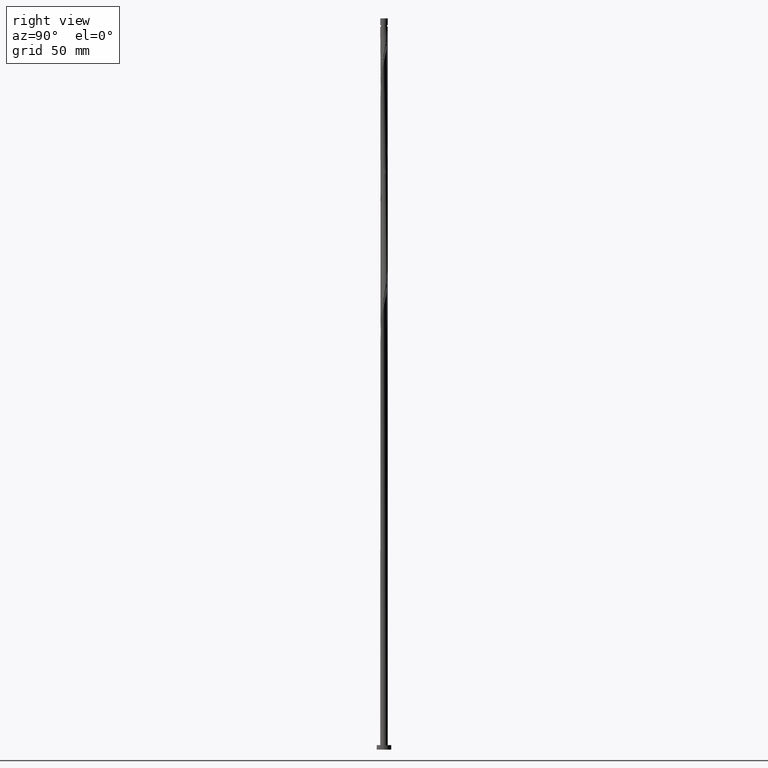
[diagram: clean part render]
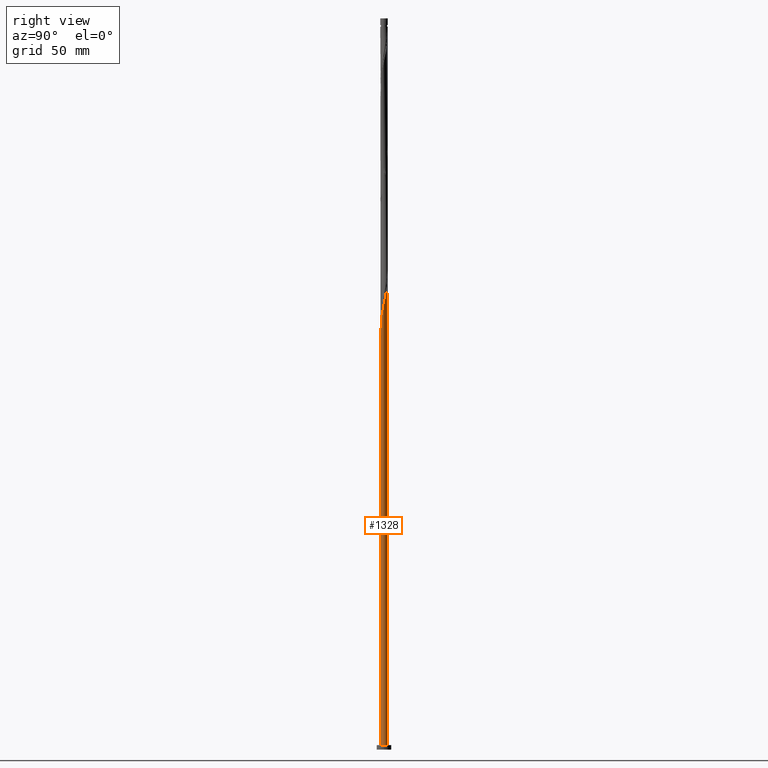
[diagram: same view with one face highlighted and labeled with its STEP entity id]
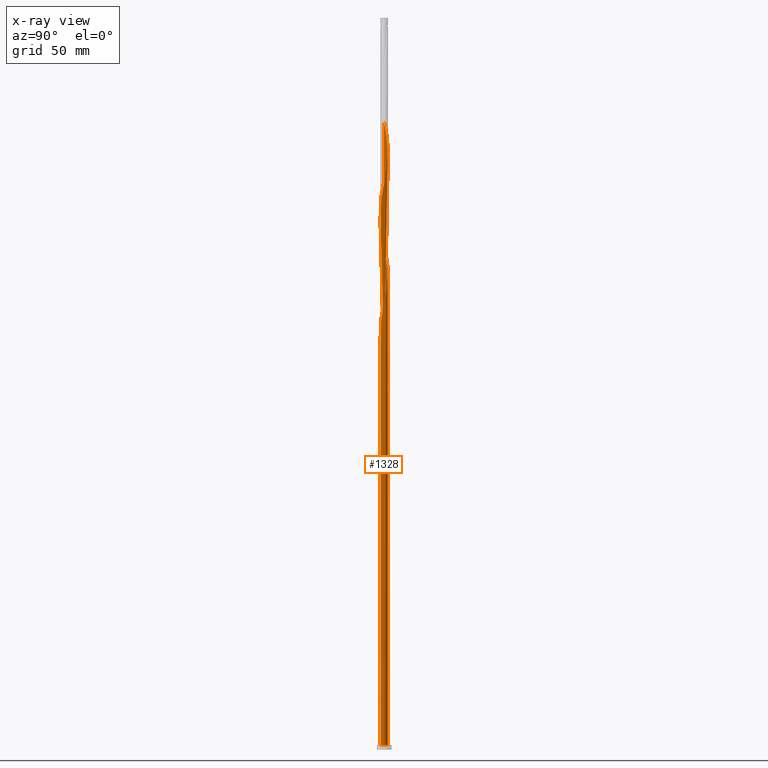
[diagram: x-ray of the same camera — body ghosted, the highlighted face saturated]
A machine part, right view. The second image highlights one B-rep face of the part: STEP entity #1328.
The next image is the same camera in x-ray: the body ghosted, the highlighted face saturated — about 0% of this face is hidden behind the body in this view.
In plain terms, the highlighted cylindrical surface (bore or boss wall) has radius 2.6 mm, axis along (-0, -0, -1).
Its self-contained STEP definition (entity closure, byte-faithful):
#1 = CARTESIAN_POINT ( 'NONE',  ( -2.308979945637289699, 1.222369572929240977, 256.1036788288062667 ) ) ;
#13 = CARTESIAN_POINT ( 'NONE',  ( -2.299163681329198461, 1.240734511745017254, 261.3120121621395242 ) ) ;
#28 = CARTESIAN_POINT ( 'NONE',  ( -0.7484224432186206144, 2.503086017032784660, 250.8953454954728670 ) ) ;
#40 = CARTESIAN_POINT ( 'NONE',  ( 2.503086017032788657, -0.7484224432186226128, 300.3745121621395242 ) ) ;
#49 = EDGE_CURVE ( 'NONE', #1168, #1640, #1856, .T. ) ;
#52 =( BOUNDED_CURVE ( )  B_SPLINE_CURVE ( 2, ( #904, #1687, #460, #1678, #314, #1520, #1369, #1213, #1837, #1062, #326, #919, #1530, #1376, #481, #1070, #334, #690, #523, #1725, #365, #1865, #1715, #88, #502, #837, #1577, #205, #68, #1286, #1735, #40, #1910, #514, #1396, #1245, #1755, #683, #1090, #978, #217, #1565, #1435, #226, #1257, #808, #542, #652, #957, #677, #968, #818, #356, #947, #1877, #55, #1747, #1406, #533, #665, #1120, #384, #1101, #1128, #937, #1417, #1887, #1270, #1552, #1109, #195, #375, #1589, #828, #1425, #78, #797, #1280, #1896, #1601, #237, #1294, #870, #121, #1480, #726, #1302, #1445, #1929, #255, #1920, #856, #108, #132, #561, #736, #1490, #1339, #1311, #405, #573, #1641, #1180, #1956, #284, #993, #1650, #1946, #1156, #552, #847, #1771, #880, #706, #1456, #1323, #1621, #1148, #415, #592, #99, #1001, #700, #1137, #1611, #1629, #1764, #264, #396, #273, #863 ),
 .UNSPECIFIED., .F., .T. ) 
 B_SPLINE_CURVE_WITH_KNOTS ( ( 3, 2, 2, 2, 2, 2, 2, 2, 2, 2, 2, 2, 2, 2, 2, 2, 2, 2, 2, 2, 2, 2, 2, 2, 2, 2, 2, 2, 2, 2, 2, 2, 2, 2, 2, 2, 2, 2, 2, 2, 2, 2, 2, 2, 2, 2, 2, 2, 2, 2, 2, 2, 2, 2, 2, 2, 2, 2, 2, 2, 2, 2, 2, 2, 2, 3 ),
 ( 0.05452869021808706695, 0.05468750000000000000, 0.06250000000000000000, 0.07031250000000000000, 0.07812500000000000000, 0.08593750000000000000, 0.09375000000000000000, 0.1015625000000000000, 0.1093750000000000000, 0.1171875000000000000, 0.1250000000000000000, 0.1328125000000000000, 0.1406250000000000000, 0.1484375000000000000, 0.1562500000000000000, 0.1640625000000000000, 0.1718750000000000000, 0.1796875000000000000, 0.1875000000000000000, 0.1953125000000000000, 0.2031250000000000000, 0.2109375000000000000, 0.2187500000000000000, 0.2265625000000000000, 0.2343750000000000000, 0.2421875000000000000, 0.2500000000000000000, 0.2578125000000000000, 0.2656250000000000000, 0.2734375000000000000, 0.2812500000000000000, 0.2890625000000000000, 0.2968750000000000000, 0.3046875000000000000, 0.3125000000000000000, 0.3203125000000000000, 0.3281250000000000000, 0.3359375000000000000, 0.3437500000000000000, 0.3515625000000000000, 0.3593750000000000000, 0.3671875000000000000, 0.3750000000000000000, 0.3828125000000000000, 0.3906250000000000000, 0.3984375000000000000, 0.4062500000000000000, 0.4140625000000000000, 0.4218750000000000000, 0.4296875000000000000, 0.4375000000000000000, 0.4453125000000000000, 0.4531250000000000000, 0.4609375000000000000, 0.4687500000000000000, 0.4765625000000000000, 0.4843750000000000000, 0.4921875000000000000, 0.5000000000000000000, 0.5078125000000000000, 0.5156250000000000000, 0.5234375000000000000, 0.5312500000000000000, 0.5390625000000000000, 0.5468750000000000000, 0.5545286902180871502 ),
 .UNSPECIFIED. ) 
 CURVE ( )  GEOMETRIC_REPRESENTATION_ITEM ( )  RATIONAL_B_SPLINE_CURVE ( ( 0.9089165573359931916, 0.9090019243628980616, 0.9090909090909899959, 0.9047133878838958809, 0.9090909090909899959, 0.9047133878838958809, 0.9090909090909899959, 0.9047133878838958809, 0.9090909090909899959, 0.9047133878838958809, 0.9090909090909899959, 0.9047133878838958809, 0.9090909090909899959, 0.9047133878838958809, 0.9090909090909899959, 0.9047133878838958809, 0.9090909090909899959, 0.9047133878838958809, 0.9090909090909899959, 0.9047133878838958809, 0.9090909090909899959, 0.9047133878838958809, 0.9090909090909899959, 0.9047133878838958809, 0.9090909090909899959, 0.9047133878838958809, 0.9090909090909899959, 0.9047133878838958809, 0.9090909090909899959, 0.9047133878838958809, 0.9090909090909899959, 0.9047133878838958809, 0.9090909090909899959, 0.9047133878838958809, 0.9090909090909899959, 0.9047133878838958809, 0.9090909090909899959, 0.9047133878838958809, 0.9090909090909899959, 0.9047133878838958809, 0.9090909090909899959, 0.9047133878838958809, 0.9090909090909899959, 0.9047133878838958809, 0.9090909090909899959, 0.9047133878838958809, 0.9090909090909899959, 0.9047133878838958809, 0.9090909090909899959, 0.9047133878838958809, 0.9090909090909899959, 0.9047133878838958809, 0.9090909090909899959, 0.9047133878838958809, 0.9090909090909899959, 0.9047133878838958809, 0.9090909090909899959, 0.9047133878838958809, 0.9090909090909899959, 0.9047133878838958809, 0.9090909090909899959, 0.9047133878838958809, 0.9090909090909899959, 0.9047133878838958809, 0.9090909090909899959, 0.9047133878838958809, 0.9090909090909899959, 0.9047133878838958809, 0.9090909090909899959, 0.9047133878838958809, 0.9090909090909899959, 0.9047133878838958809, 0.9090909090909899959, 0.9047133878838958809, 0.9090909090909899959, 0.9047133878838958809, 0.9090909090909899959, 0.9047133878838958809, 0.9090909090909899959, 0.9047133878838958809, 0.9090909090909899959, 0.9047133878838958809, 0.9090909090909899959, 0.9047133878838958809, 0.9090909090909899959, 0.9047133878838958809, 0.9090909090909899959, 0.9047133878838958809, 0.9090909090909899959, 0.9047133878838958809, 0.9090909090909899959, 0.9047133878838958809, 0.9090909090909899959, 0.9047133878838958809, 0.9090909090909899959, 0.9047133878838958809, 0.9090909090909899959, 0.9047133878838958809, 0.9090909090909899959, 0.9047133878838958809, 0.9090909090909899959, 0.9047133878838958809, 0.9090909090909899959, 0.9047133878838958809, 0.9090909090909899959, 0.9047133878838958809, 0.9090909090909899959, 0.9047133878838958809, 0.9090909090909899959, 0.9047133878838958809, 0.9090909090909899959, 0.9047133878838958809, 0.9090909090909899959, 0.9047133878838958809, 0.9090909090909899959, 0.9047133878838958809, 0.9090909090909899959, 0.9047133878838958809, 0.9090909090909899959, 0.9047133878838958809, 0.9090909090909899959, 0.9047133878838958809, 0.9090909090909899959, 0.9047133878838958809, 0.9090909090909899959, 0.9047133878838958809, 0.9090909090909899959, 0.9047133878838958809, 0.9090909090909899959, 0.9048023726119877042, 0.9089165573359933026 ) ) 
 REPRESENTATION_ITEM ( '' )  );
#55 = CARTESIAN_POINT ( 'NONE',  ( -1.240734511745018587, 2.299163681329201125, 331.6245121621395811 ) ) ;
#68 = CARTESIAN_POINT ( 'NONE',  ( 2.167560507729555219, -1.435855649197093742, 296.4682621621395811 ) ) ;
#78 = CARTESIAN_POINT ( 'NONE',  ( -1.649341725464944730, -2.026141069821822516, 357.6661788288062098 ) ) ;
#88 = CARTESIAN_POINT ( 'NONE',  ( 1.240734511745017699, -2.299163681329201570, 289.9578454954728386 ) ) ;
#93 = CARTESIAN_POINT ( 'NONE',  ( -2.599999999999999645, 1.395076711723889238E-15, 267.8751258068029983 ) ) ;
#99 = CARTESIAN_POINT ( 'NONE',  ( -1.453086620355561687, 2.156047140890863467, 416.2599288288062098 ) ) ;
#108 = CARTESIAN_POINT ( 'NONE',  ( 2.167560507729555219, -1.435855649197093742, 379.8015954954729523 ) ) ;
#121 = CARTESIAN_POINT ( 'NONE',  ( 0.2664373715413926869, -2.598958808681759880, 368.0828454954728954 ) ) ;
#132 = CARTESIAN_POINT ( 'NONE',  ( 2.308979945637289699, -1.222369572929242754, 381.1036788288061530 ) ) ;
#138 = CARTESIAN_POINT ( 'NONE',  ( -2.600000000000003197, -6.159957958914396626E-16, 262.5613985174759364 ) ) ;
#144 = CARTESIAN_POINT ( 'NONE',  ( -2.406032981335038734, 0.9853960080739319061, 257.4057621621395242 ) ) ;
#149 = DIRECTION ( 'NONE',  ( 0.000000000000000000, 0.000000000000000000, 1.000000000000000000 ) ) ;
#171 = CARTESIAN_POINT ( 'NONE',  ( -2.547999999999998266, 0.5173934672954477731, 265.2182621621395242 ) ) ;
#183 = DIRECTION ( 'NONE',  ( 1.000000000000000000, 0.000000000000000000, 0.000000000000000000 ) ) ;
#195 = CARTESIAN_POINT ( 'NONE',  ( -2.398102436323722220, -1.004542037397260446, 351.1557621621395811 ) ) ;
#205 = CARTESIAN_POINT ( 'NONE',  ( 2.026141069821822072, -1.649341725464944730, 295.1661788288061530 ) ) ;
#217 = CARTESIAN_POINT ( 'NONE',  ( 2.156047140890863467, 1.453086620355562131, 312.0932621621394674 ) ) ;
#226 = CARTESIAN_POINT ( 'NONE',  ( 1.649341725464944064, 2.026141069821822516, 315.9995121621395811 ) ) ;
#237 = CARTESIAN_POINT ( 'NONE',  ( -0.4970681509769376838, -2.552042956786657157, 364.1765954954727817 ) ) ;
#255 = CARTESIAN_POINT ( 'NONE',  ( 1.665438728966104787, -2.012930600452525365, 375.8953454954728954 ) ) ;
#264 = CARTESIAN_POINT ( 'NONE',  ( -2.503086017032788657, 0.7484224432186226128, 425.3745121621395242 ) ) ;
#273 = CARTESIAN_POINT ( 'NONE',  ( -2.600000000000003197, 0.2508475188153505564, 427.9520850787266681 ) ) ;
#274 = ORIENTED_EDGE ( 'NONE', *, *, #1814, .T. ) ;
#282 = EDGE_LOOP ( 'NONE', ( #1770, #1713, #933, #1792, #274, #1807, #1944, #1684, #1501 ) ) ;
#284 = CARTESIAN_POINT ( 'NONE',  ( 2.156047140890863467, 1.453086620355562131, 395.4265954954728386 ) ) ;
#295 = CARTESIAN_POINT ( 'NONE',  ( -2.026141069821822516, 1.649341725464944730, 253.4995121621394958 ) ) ;
#314 = CARTESIAN_POINT ( 'NONE',  ( -2.548000000000002263, -0.5173934672954478842, 265.2182621621395811 ) ) ;
#326 = CARTESIAN_POINT ( 'NONE',  ( -1.831136162958735492, -1.845789899393962319, 273.0307621621395811 ) ) ;
#329 = FACE_OUTER_BOUND ( 'NONE', #282, .T. ) ;
#334 = CARTESIAN_POINT ( 'NONE',  ( -0.4970681509769376838, -2.552042956786657157, 280.8432621621394674 ) ) ;
#356 = CARTESIAN_POINT ( 'NONE',  ( -0.5173934672954473291, 2.548000000000002263, 327.7182621621395242 ) ) ;
#365 = CARTESIAN_POINT ( 'NONE',  ( 0.5173934672954476621, -2.548000000000002263, 286.0515954954728386 ) ) ;
#375 = CARTESIAN_POINT ( 'NONE',  ( -2.299163681329201570, -1.240734511745017921, 352.4578454954728954 ) ) ;
#384 = CARTESIAN_POINT ( 'NONE',  ( -2.308979945637289699, 1.222369572929240977, 339.4370121621395242 ) ) ;
#387 =( BOUNDED_CURVE ( )  B_SPLINE_CURVE ( 2, ( #1835, #924, #1667, #787, #171, #1540, #1384, #13, #612, #759, #467, #1359, #1528, #776, #1500, #28, #1968, #1203, #641, #1367, #1826 ),
 .UNSPECIFIED., .F., .T. ) 
 B_SPLINE_CURVE_WITH_KNOTS ( ( 3, 2, 2, 2, 2, 2, 2, 2, 2, 2, 3 ),
 ( 0.9295286902180871502, 0.9296875000000000000, 0.9375000000000000000, 0.9453125000000000000, 0.9531250000000000000, 0.9609375000000000000, 0.9687500000000000000, 0.9765625000000000000, 0.9843750000000000000, 0.9921875000000000000, 1.000000000000000000 ),
 .UNSPECIFIED. ) 
 CURVE ( )  GEOMETRIC_REPRESENTATION_ITEM ( )  RATIONAL_B_SPLINE_CURVE ( ( 0.9089165573359877515, 0.9090019243628926215, 0.9090909090909844448, 0.9047133878838902188, 0.9090909090909844448, 0.9047133878838902188, 0.9090909090909844448, 0.9047133878838902188, 0.9090909090909844448, 0.9047133878838902188, 0.9090909090909844448, 0.9047133878838902188, 0.9090909090909844448, 0.9047133878838902188, 0.9090909090909844448, 0.9047133878838902188, 0.9090909090909844448, 0.9047133878838902188, 0.9090909090909844448, 0.9047133878838902188, 0.9090909090909844448 ) ) 
 REPRESENTATION_ITEM ( '' )  );
#396 = CARTESIAN_POINT ( 'NONE',  ( -2.552042956786657157, 0.4970681509769375728, 426.6765954954728954 ) ) ;
#405 = CARTESIAN_POINT ( 'NONE',  ( 2.598958808681760324, 0.2664373715413937416, 388.9161788288060961 ) ) ;
#413 = VERTEX_POINT ( 'NONE', #1187 ) ;
#415 = CARTESIAN_POINT ( 'NONE',  ( -1.004542037397260890, 2.398102436323722220, 413.6557621621395811 ) ) ;
#421 = DIRECTION ( 'NONE',  ( -1.777781487126677093E-29, -2.668805347656625061E-14, -1.000000000000000000 ) ) ;
#440 = CARTESIAN_POINT ( 'NONE',  ( -1.240734511745018587, 2.299163681329201125, 248.2911788288062098 ) ) ;
#451 = CARTESIAN_POINT ( 'NONE',  ( -2.600000000000002309, 0.2508475188153531654, 261.2854184120598688 ) ) ;
#456 = DIRECTION ( 'NONE',  ( -1.000000000000000000, 0.000000000000000000, 0.000000000000000000 ) ) ;
#460 = CARTESIAN_POINT ( 'NONE',  ( -2.599979352611143657, -0.01036175640307016033, 262.6140954954728954 ) ) ;
#461 = EDGE_CURVE ( 'NONE', #1772, #413, #1174, .T. ) ;
#467 = CARTESIAN_POINT ( 'NONE',  ( -1.831136162958732161, 1.845789899393961209, 257.4057621621394674 ) ) ;
#478 = CARTESIAN_POINT ( 'NONE',  ( -1.004542037397260890, 2.398102436323722220, 246.9890954954728670 ) ) ;
#481 = CARTESIAN_POINT ( 'NONE',  ( -0.9853960080739317950, -2.406032981335039622, 278.2390954954728386 ) ) ;
#502 = CARTESIAN_POINT ( 'NONE',  ( 1.453086620355561243, -2.156047140890863467, 291.2599288288062667 ) ) ;
#514 = CARTESIAN_POINT ( 'NONE',  ( 2.600999896540526990, -0.2457138587352526715, 302.9786788288062098 ) ) ;
#523 = CARTESIAN_POINT ( 'NONE',  ( 0.01036175640306952021, -2.599979352611144101, 283.4474288288062667 ) ) ;
#533 = CARTESIAN_POINT ( 'NONE',  ( -1.845789899393963207, 1.831136162958734825, 335.5307621621394105 ) ) ;
#534 = CIRCLE ( 'NONE', #932, 2.600000000000000089 ) ;
#542 = CARTESIAN_POINT ( 'NONE',  ( 0.9853960080739317950, 2.406032981335038734, 319.9057621621394674 ) ) ;
#552 = CARTESIAN_POINT ( 'NONE',  ( 1.222369572929242754, 2.308979945637288811, 401.9370121621395811 ) ) ;
#561 = CARTESIAN_POINT ( 'NONE',  ( 2.406032981335038734, -0.9853960080739317950, 382.4057621621395811 ) ) ;
#573 = CARTESIAN_POINT ( 'NONE',  ( 2.548000000000002263, 0.5173934672954475511, 390.2182621621395811 ) ) ;
#592 = CARTESIAN_POINT ( 'NONE',  ( -1.240734511745018587, 2.299163681329201125, 414.9578454954728954 ) ) ;
#612 = CARTESIAN_POINT ( 'NONE',  ( -2.156047140890859914, 1.453086620355560132, 260.0099288288062098 ) ) ;
#641 = CARTESIAN_POINT ( 'NONE',  ( 0.01036175640307070676, 2.599979352611139660, 246.9890954954728386 ) ) ;
#652 = CARTESIAN_POINT ( 'NONE',  ( 0.7484224432186228348, 2.503086017032787769, 321.2078454954728954 ) ) ;
#665 = CARTESIAN_POINT ( 'NONE',  ( -2.026141069821822516, 1.649341725464944730, 336.8328454954728386 ) ) ;
#677 = CARTESIAN_POINT ( 'NONE',  ( 0.2457138587352527825, 2.600999896540526990, 323.8120121621395242 ) ) ;
#683 = CARTESIAN_POINT ( 'NONE',  ( 2.497041191318244646, 0.7683495630495014161, 308.1870121621395242 ) ) ;
#690 = CARTESIAN_POINT ( 'NONE',  ( -0.2457138587352525050, -2.600999896540526990, 282.1453454954730091 ) ) ;
#700 = CARTESIAN_POINT ( 'NONE',  ( -1.845789899393963207, 1.831136162958734825, 418.8640954954728954 ) ) ;
#706 = CARTESIAN_POINT ( 'NONE',  ( 0.2457138587352527825, 2.600999896540526990, 407.1453454954728386 ) ) ;
#725 = VERTEX_POINT ( 'NONE', #138 ) ;
#726 = CARTESIAN_POINT ( 'NONE',  ( 0.7683495630495027484, -2.497041191318244202, 370.6870121621395242 ) ) ;
#736 = CARTESIAN_POINT ( 'NONE',  ( 2.503086017032788657, -0.7484224432186226128, 383.7078454954729523 ) ) ;
#746 = VECTOR ( 'NONE', #916, 1000.000000000000000 ) ;
#750 = CARTESIAN_POINT ( 'NONE',  ( -2.503086017032788657, 0.7484224432186226128, 258.7078454954728954 ) ) ;
#755 = EDGE_CURVE ( 'NONE', #725, #1772, #1344, .T. ) ;
#759 = CARTESIAN_POINT ( 'NONE',  ( -2.012930600452522700, 1.665438728966103232, 258.7078454954729523 ) ) ;
#776 = CARTESIAN_POINT ( 'NONE',  ( -1.222369572929239645, 2.308979945637287479, 253.4995121621395526 ) ) ;
#787 = CARTESIAN_POINT ( 'NONE',  ( -2.598958808681755883, 0.2664373715413931309, 266.5203454954729523 ) ) ;
#797 = CARTESIAN_POINT ( 'NONE',  ( -1.435855649197093298, -2.167560507729555219, 358.9682621621395811 ) ) ;
#808 = CARTESIAN_POINT ( 'NONE',  ( 1.222369572929242754, 2.308979945637288811, 318.6036788288062098 ) ) ;
#818 = CARTESIAN_POINT ( 'NONE',  ( -0.2664373715413935195, 2.598958808681760324, 326.4161788288061530 ) ) ;
#828 = CARTESIAN_POINT ( 'NONE',  ( -2.012930600452525365, -1.665438728966104787, 355.0620121621395811 ) ) ;
#837 = CARTESIAN_POINT ( 'NONE',  ( 1.665438728966104787, -2.012930600452525365, 292.5620121621395811 ) ) ;
#847 = CARTESIAN_POINT ( 'NONE',  ( 0.9853960080739317950, 2.406032981335038734, 403.2390954954729523 ) ) ;
#856 = CARTESIAN_POINT ( 'NONE',  ( 2.026141069821822072, -1.649341725464944730, 378.4995121621395811 ) ) ;
#863 = CARTESIAN_POINT ( 'NONE',  ( -2.600000000000003197, -6.159957958914396626E-16, 429.2280651841427357 ) ) ;
#870 = CARTESIAN_POINT ( 'NONE',  ( 0.01036175640306952021, -2.599979352611144101, 366.7807621621394674 ) ) ;
#880 = CARTESIAN_POINT ( 'NONE',  ( 0.4970681509769390716, 2.552042956786657157, 405.8432621621395242 ) ) ;
#886 = CARTESIAN_POINT ( 'NONE',  ( -2.600000000000000089, 0.000000000000000000, 500.0000000000000000 ) ) ;
#893 = CARTESIAN_POINT ( 'NONE',  ( -2.167560507729555663, 1.435855649197093076, 254.8015954954728670 ) ) ;
#904 = CARTESIAN_POINT ( 'NONE',  ( -2.600000000000003197, -6.159957958914397612E-16, 262.5613985174759364 ) ) ;
#916 = DIRECTION ( 'NONE',  ( -0.000000000000000000, -0.000000000000000000, -1.000000000000000000 ) ) ;
#919 = CARTESIAN_POINT ( 'NONE',  ( -1.649341725464944730, -2.026141069821822516, 274.3328454954728954 ) ) ;
#921 = CYLINDRICAL_SURFACE ( 'NONE', #1284, 2.600000000000000089 ) ;
#924 = CARTESIAN_POINT ( 'NONE',  ( -2.599999999999999645, 0.005180898773080699904, 267.8487722522857553 ) ) ;
#932 = AXIS2_PLACEMENT_3D ( 'NONE', #1374, #1211, #183 ) ;
#933 = ORIENTED_EDGE ( 'NONE', *, *, #755, .T. ) ;
#937 = CARTESIAN_POINT ( 'NONE',  ( -2.552042956786657157, 0.4970681509769375728, 343.3432621621396379 ) ) ;
#947 = CARTESIAN_POINT ( 'NONE',  ( -0.7683495630495027484, 2.497041191318244202, 329.0203454954728386 ) ) ;
#957 = CARTESIAN_POINT ( 'NONE',  ( 0.4970681509769390716, 2.552042956786657157, 322.5099288288062098 ) ) ;
#968 = CARTESIAN_POINT ( 'NONE',  ( -0.01036175640306909694, 2.599979352611143657, 325.1140954954729523 ) ) ;
#978 = CARTESIAN_POINT ( 'NONE',  ( 2.299163681329201570, 1.240734511745017699, 310.7911788288061530 ) ) ;
#993 = CARTESIAN_POINT ( 'NONE',  ( 2.012930600452525365, 1.665438728966104787, 396.7286788288062098 ) ) ;
#1001 = CARTESIAN_POINT ( 'NONE',  ( -1.665438728966104787, 2.012930600452525365, 417.5620121621395242 ) ) ;
#1009 = DIRECTION ( 'NONE',  ( 0.000000000000000000, 1.000000000000000000, -2.135044278125300869E-14 ) ) ;
#1031 = CARTESIAN_POINT ( 'NONE',  ( -1.665438728966104787, 2.012930600452525365, 250.8953454954728670 ) ) ;
#1039 = CARTESIAN_POINT ( 'NONE',  ( 0.5173934672954482172, 2.547999999999998266, 244.3849288288061814 ) ) ;
#1048 = CARTESIAN_POINT ( 'NONE',  ( -2.600000000000003197, -6.159957958914397612E-16, 262.5613985174759364 ) ) ;
#1054 = AXIS2_PLACEMENT_3D ( 'NONE', #1781, #421, #1009 ) ;
#1062 = CARTESIAN_POINT ( 'NONE',  ( -2.012930600452525365, -1.665438728966104787, 271.7286788288061530 ) ) ;
#1067 = CARTESIAN_POINT ( 'NONE',  ( -2.600000000000000089, 0.000000000000000000, 3.000000000000000000 ) ) ;
#1070 = CARTESIAN_POINT ( 'NONE',  ( -0.7484224432186226128, -2.503086017032788657, 279.5411788288062098 ) ) ;
#1090 = CARTESIAN_POINT ( 'NONE',  ( 2.398102436323722220, 1.004542037397260890, 309.4890954954730091 ) ) ;
#1101 = CARTESIAN_POINT ( 'NONE',  ( -2.406032981335038734, 0.9853960080739319061, 340.7390954954729523 ) ) ;
#1109 = CARTESIAN_POINT ( 'NONE',  ( -2.497041191318244202, -0.7683495630495029705, 349.8536788288061530 ) ) ;
#1120 = CARTESIAN_POINT ( 'NONE',  ( -2.167560507729555663, 1.435855649197093076, 338.1349288288061530 ) ) ;
#1128 = CARTESIAN_POINT ( 'NONE',  ( -2.503086017032788657, 0.7484224432186226128, 342.0411788288061530 ) ) ;
#1137 = CARTESIAN_POINT ( 'NONE',  ( -2.026141069821822516, 1.649341725464944730, 420.1661788288061530 ) ) ;
#1148 = CARTESIAN_POINT ( 'NONE',  ( -0.7683495630495027484, 2.497041191318244202, 412.3536788288062098 ) ) ;
#1156 = CARTESIAN_POINT ( 'NONE',  ( 1.435855649197093742, 2.167560507729555219, 400.6349288288060961 ) ) ;
#1168 = VERTEX_POINT ( 'NONE', #1199 ) ;
#1174 = CIRCLE ( 'NONE', #1536, 2.600000000000000089 ) ;
#1180 = CARTESIAN_POINT ( 'NONE',  ( 2.398102436323722220, 1.004542037397260890, 392.8224288288062667 ) ) ;
#1187 = CARTESIAN_POINT ( 'NONE',  ( 2.600000000000000089, 0.000000000000000000, 3.000000000000000000 ) ) ;
#1194 = CARTESIAN_POINT ( 'NONE',  ( -1.453086620355561687, 2.156047140890863467, 249.5932621621395242 ) ) ;
#1199 = CARTESIAN_POINT ( 'NONE',  ( -2.600000000000003197, -6.159957958914396626E-16, 429.2280651841427357 ) ) ;
#1203 = CARTESIAN_POINT ( 'NONE',  ( -0.2457138587352517001, 2.600999896540523881, 248.2911788288062098 ) ) ;
#1211 = DIRECTION ( 'NONE',  ( 0.000000000000000000, 0.000000000000000000, 1.000000000000000000 ) ) ;
#1213 = CARTESIAN_POINT ( 'NONE',  ( -2.299163681329201570, -1.240734511745017921, 269.1245121621395242 ) ) ;
#1227 = DIRECTION ( 'NONE',  ( -0.000000000000000000, -0.000000000000000000, -1.000000000000000000 ) ) ;
#1245 = CARTESIAN_POINT ( 'NONE',  ( 2.598958808681760324, 0.2664373715413937416, 305.5828454954728954 ) ) ;
#1257 = CARTESIAN_POINT ( 'NONE',  ( 1.435855649197093742, 2.167560507729555219, 317.3015954954729523 ) ) ;
#1270 = CARTESIAN_POINT ( 'NONE',  ( -2.598958808681759880, -0.2664373715413927424, 347.2495121621395811 ) ) ;
#1280 = CARTESIAN_POINT ( 'NONE',  ( -1.222369572929240977, -2.308979945637290143, 360.2703454954728954 ) ) ;
#1284 = AXIS2_PLACEMENT_3D ( 'NONE', #1534, #1227, #456 ) ;
#1286 = CARTESIAN_POINT ( 'NONE',  ( 2.308979945637289699, -1.222369572929242754, 297.7703454954729523 ) ) ;
#1294 = CARTESIAN_POINT ( 'NONE',  ( -0.2457138587352525050, -2.600999896540526990, 365.4786788288061530 ) ) ;
#1302 = CARTESIAN_POINT ( 'NONE',  ( 1.004542037397260890, -2.398102436323722220, 371.9890954954727817 ) ) ;
#1311 = CARTESIAN_POINT ( 'NONE',  ( 2.599979352611143657, 0.01036175640306919929, 387.6140954954728386 ) ) ;
#1323 = CARTESIAN_POINT ( 'NONE',  ( -0.2664373715413935195, 2.598958808681760324, 409.7495121621395811 ) ) ;
#1328 = ADVANCED_FACE ( 'NONE', ( #329 ), #921, .T. ) ;
#1339 = CARTESIAN_POINT ( 'NONE',  ( 2.600999896540526990, -0.2457138587352526715, 386.3120121621395242 ) ) ;
#1344 = LINE ( 'NONE', #886, #1904 ) ;
#1347 = VERTEX_POINT ( 'NONE', #1850 ) ;
#1359 = CARTESIAN_POINT ( 'NONE',  ( -1.649341725464942066, 2.026141069821819851, 256.1036788288062098 ) ) ;
#1367 = CARTESIAN_POINT ( 'NONE',  ( 0.2664373715413932975, 2.598958808681755883, 245.6870121621395242 ) ) ;
#1369 = CARTESIAN_POINT ( 'NONE',  ( -2.398102436323722220, -1.004542037397260446, 267.8224288288061530 ) ) ;
#1374 = CARTESIAN_POINT ( 'NONE',  ( 0.000000000000000000, 0.000000000000000000, 3.000000000000000000 ) ) ;
#1376 = CARTESIAN_POINT ( 'NONE',  ( -1.222369572929240977, -2.308979945637290143, 276.9370121621395242 ) ) ;
#1384 = CARTESIAN_POINT ( 'NONE',  ( -2.398102436323719999, 1.004542037397259557, 262.6140954954728386 ) ) ;
#1396 = CARTESIAN_POINT ( 'NONE',  ( 2.599979352611143657, 0.01036175640306919929, 304.2807621621395242 ) ) ;
#1406 = CARTESIAN_POINT ( 'NONE',  ( -1.665438728966104787, 2.012930600452525365, 334.2286788288062098 ) ) ;
#1417 = CARTESIAN_POINT ( 'NONE',  ( -2.600999896540527434, 0.2457138587352523940, 344.6453454954728954 ) ) ;
#1425 = CARTESIAN_POINT ( 'NONE',  ( -1.831136162958735492, -1.845789899393962319, 356.3640954954728954 ) ) ;
#1435 = CARTESIAN_POINT ( 'NONE',  ( 1.831136162958735714, 1.845789899393962319, 314.6974288288062098 ) ) ;
#1445 = CARTESIAN_POINT ( 'NONE',  ( 1.240734511745017699, -2.299163681329201570, 373.2911788288061530 ) ) ;
#1453 =( BOUNDED_CURVE ( )  B_SPLINE_CURVE ( 2, ( #1805, #1844, #478, #440, #1194, #1031, #1660, #295, #893, #1, #144, #750, #1817, #451, #1048 ),
 .UNSPECIFIED., .F., .T. ) 
 B_SPLINE_CURVE_WITH_KNOTS ( ( 3, 2, 2, 2, 2, 2, 2, 3 ),
 ( 0.000000000000000000, 0.007812500000000000000, 0.01562500000000000000, 0.02343750000000000000, 0.03125000000000000000, 0.03906249999999999306, 0.04687500000000000000, 0.05452869021808706695 ),
 .UNSPECIFIED. ) 
 CURVE ( )  GEOMETRIC_REPRESENTATION_ITEM ( )  RATIONAL_B_SPLINE_CURVE ( ( 0.9090909090909899959, 0.9047133878838958809, 0.9090909090909899959, 0.9047133878838958809, 0.9090909090909899959, 0.9047133878838958809, 0.9090909090909899959, 0.9047133878838958809, 0.9090909090909899959, 0.9047133878838958809, 0.9090909090909899959, 0.9047133878838958809, 0.9090909090909899959, 0.9048023726119878152, 0.9089165573359931916 ) ) 
 REPRESENTATION_ITEM ( '' )  );
#1456 = CARTESIAN_POINT ( 'NONE',  ( -0.01036175640306909694, 2.599979352611143657, 408.4474288288062667 ) ) ;
#1480 = CARTESIAN_POINT ( 'NONE',  ( 0.5173934672954476621, -2.548000000000002263, 369.3849288288062098 ) ) ;
#1490 = CARTESIAN_POINT ( 'NONE',  ( 2.552042956786657157, -0.4970681509769389050, 385.0099288288062098 ) ) ;
#1500 = CARTESIAN_POINT ( 'NONE',  ( -0.9853960080739302407, 2.406032981335035625, 252.1974288288061814 ) ) ;
#1501 = ORIENTED_EDGE ( 'NONE', *, *, #1901, .F. ) ;
#1517 = CARTESIAN_POINT ( 'NONE',  ( -2.600000000000000089, 0.000000000000000000, 500.0000000000000000 ) ) ;
#1520 = CARTESIAN_POINT ( 'NONE',  ( -2.497041191318244202, -0.7683495630495029705, 266.5203454954729523 ) ) ;
#1528 = CARTESIAN_POINT ( 'NONE',  ( -1.435855649197091077, 2.167560507729552999, 254.8015954954728102 ) ) ;
#1530 = CARTESIAN_POINT ( 'NONE',  ( -1.435855649197093298, -2.167560507729555219, 275.6349288288061530 ) ) ;
#1534 = CARTESIAN_POINT ( 'NONE',  ( 0.000000000000000000, 0.000000000000000000, 500.0000000000000000 ) ) ;
#1536 = AXIS2_PLACEMENT_3D ( 'NONE', #1776, #149, #1654 ) ;
#1540 = CARTESIAN_POINT ( 'NONE',  ( -2.497041191318240649, 0.7683495630495025264, 263.9161788288061530 ) ) ;
#1552 = CARTESIAN_POINT ( 'NONE',  ( -2.548000000000002263, -0.5173934672954478842, 348.5515954954729523 ) ) ;
#1565 = CARTESIAN_POINT ( 'NONE',  ( 2.012930600452525365, 1.665438728966104787, 313.3953454954728386 ) ) ;
#1577 = CARTESIAN_POINT ( 'NONE',  ( 1.845789899393962319, -1.831136162958735714, 293.8640954954728954 ) ) ;
#1589 = CARTESIAN_POINT ( 'NONE',  ( -2.156047140890863467, -1.453086620355561465, 353.7599288288060961 ) ) ;
#1601 = CARTESIAN_POINT ( 'NONE',  ( -0.7484224432186226128, -2.503086017032788657, 362.8745121621395242 ) ) ;
#1611 = CARTESIAN_POINT ( 'NONE',  ( -2.167560507729555663, 1.435855649197093076, 421.4682621621394674 ) ) ;
#1621 = CARTESIAN_POINT ( 'NONE',  ( -0.5173934672954473291, 2.548000000000002263, 411.0515954954729523 ) ) ;
#1629 = CARTESIAN_POINT ( 'NONE',  ( -2.308979945637289699, 1.222369572929240977, 422.7703454954728954 ) ) ;
#1639 = EDGE_CURVE ( 'NONE', #725, #1168, #52, .T. ) ;
#1640 = VERTEX_POINT ( 'NONE', #93 ) ;
#1641 = CARTESIAN_POINT ( 'NONE',  ( 2.497041191318244646, 0.7683495630495014161, 391.5203454954728954 ) ) ;
#1650 = CARTESIAN_POINT ( 'NONE',  ( 1.831136162958735714, 1.845789899393962319, 398.0307621621394105 ) ) ;
#1654 = DIRECTION ( 'NONE',  ( 1.000000000000000000, 0.000000000000000000, 0.000000000000000000 ) ) ;
#1660 = CARTESIAN_POINT ( 'NONE',  ( -1.845789899393963207, 1.831136162958734825, 252.1974288288061814 ) ) ;
#1667 = CARTESIAN_POINT ( 'NONE',  ( -2.599979352611139660, 0.01036175640307092014, 267.8224288288061530 ) ) ;
#1678 = CARTESIAN_POINT ( 'NONE',  ( -2.598958808681759880, -0.2664373715413927424, 263.9161788288061530 ) ) ;
#1684 = ORIENTED_EDGE ( 'NONE', *, *, #1694, .T. ) ;
#1687 = CARTESIAN_POINT ( 'NONE',  ( -2.600000000000002753, -0.005180898773077212242, 262.5877520719932932 ) ) ;
#1694 = EDGE_CURVE ( 'NONE', #1347, #1974, #1935, .T. ) ;
#1713 = ORIENTED_EDGE ( 'NONE', *, *, #1639, .F. ) ;
#1715 = CARTESIAN_POINT ( 'NONE',  ( 1.004542037397260890, -2.398102436323722220, 288.6557621621395811 ) ) ;
#1725 = CARTESIAN_POINT ( 'NONE',  ( 0.2664373715413926869, -2.598958808681759880, 284.7495121621395811 ) ) ;
#1735 = CARTESIAN_POINT ( 'NONE',  ( 2.406032981335038734, -0.9853960080739317950, 299.0724288288062098 ) ) ;
#1747 = CARTESIAN_POINT ( 'NONE',  ( -1.453086620355561687, 2.156047140890863467, 332.9265954954728386 ) ) ;
#1755 = CARTESIAN_POINT ( 'NONE',  ( 2.548000000000002263, 0.5173934672954475511, 306.8849288288062098 ) ) ;
#1764 = CARTESIAN_POINT ( 'NONE',  ( -2.406032981335038734, 0.9853960080739319061, 424.0724288288061530 ) ) ;
#1770 = ORIENTED_EDGE ( 'NONE', *, *, #49, .F. ) ;
#1771 = CARTESIAN_POINT ( 'NONE',  ( 0.7484224432186228348, 2.503086017032787769, 404.5411788288060961 ) ) ;
#1772 = VERTEX_POINT ( 'NONE', #1067 ) ;
#1776 = CARTESIAN_POINT ( 'NONE',  ( 0.000000000000000000, 0.000000000000000000, 3.000000000000000000 ) ) ;
#1781 = CARTESIAN_POINT ( 'NONE',  ( 0.000000000000000000, 0.000000000000000000, 244.3849288288062382 ) ) ;
#1792 = ORIENTED_EDGE ( 'NONE', *, *, #461, .T. ) ;
#1805 = CARTESIAN_POINT ( 'NONE',  ( -0.5173934672954473291, 2.548000000000001819, 244.3849288288061814 ) ) ;
#1807 = ORIENTED_EDGE ( 'NONE', *, *, #755, .F. ) ;
#1814 = EDGE_CURVE ( 'NONE', #413, #1772, #534, .T. ) ;
#1817 = CARTESIAN_POINT ( 'NONE',  ( -2.552042956786657157, 0.4970681509769375728, 260.0099288288061530 ) ) ;
#1826 = CARTESIAN_POINT ( 'NONE',  ( 0.5173934672954482172, 2.547999999999998266, 244.3849288288061814 ) ) ;
#1835 = CARTESIAN_POINT ( 'NONE',  ( -2.599999999999999645, 1.395076711723889238E-15, 267.8751258068029983 ) ) ;
#1837 = CARTESIAN_POINT ( 'NONE',  ( -2.156047140890863467, -1.453086620355561465, 270.4265954954729523 ) ) ;
#1844 = CARTESIAN_POINT ( 'NONE',  ( -0.7683495630495027484, 2.497041191318244202, 245.6870121621394389 ) ) ;
#1850 = CARTESIAN_POINT ( 'NONE',  ( -0.5173934672954473291, 2.548000000000001819, 244.3849288288061814 ) ) ;
#1856 = LINE ( 'NONE', #1517, #746 ) ;
#1865 = CARTESIAN_POINT ( 'NONE',  ( 0.7683495630495027484, -2.497041191318244202, 287.3536788288061530 ) ) ;
#1877 = CARTESIAN_POINT ( 'NONE',  ( -1.004542037397260890, 2.398102436323722220, 330.3224288288062098 ) ) ;
#1887 = CARTESIAN_POINT ( 'NONE',  ( -2.599979352611143657, -0.01036175640307016033, 345.9474288288062098 ) ) ;
#1896 = CARTESIAN_POINT ( 'NONE',  ( -0.9853960080739317950, -2.406032981335039622, 361.5724288288062098 ) ) ;
#1901 = EDGE_CURVE ( 'NONE', #1640, #1974, #387, .T. ) ;
#1904 = VECTOR ( 'NONE', #1962, 1000.000000000000000 ) ;
#1910 = CARTESIAN_POINT ( 'NONE',  ( 2.552042956786657157, -0.4970681509769389050, 301.6765954954728386 ) ) ;
#1920 = CARTESIAN_POINT ( 'NONE',  ( 1.845789899393962319, -1.831136162958735714, 377.1974288288062667 ) ) ;
#1929 = CARTESIAN_POINT ( 'NONE',  ( 1.453086620355561243, -2.156047140890863467, 374.5932621621395811 ) ) ;
#1935 = CIRCLE ( 'NONE', #1054, 2.600000000000000089 ) ;
#1944 = ORIENTED_EDGE ( 'NONE', *, *, #1963, .F. ) ;
#1946 = CARTESIAN_POINT ( 'NONE',  ( 1.649341725464944064, 2.026141069821822516, 399.3328454954728954 ) ) ;
#1956 = CARTESIAN_POINT ( 'NONE',  ( 2.299163681329201570, 1.240734511745017699, 394.1245121621395811 ) ) ;
#1962 = DIRECTION ( 'NONE',  ( -0.000000000000000000, -0.000000000000000000, -1.000000000000000000 ) ) ;
#1963 = EDGE_CURVE ( 'NONE', #1347, #725, #1453, .T. ) ;
#1968 = CARTESIAN_POINT ( 'NONE',  ( -0.4970681509769364070, 2.552042956786653605, 249.5932621621394674 ) ) ;
#1974 = VERTEX_POINT ( 'NONE', #1039 ) ;